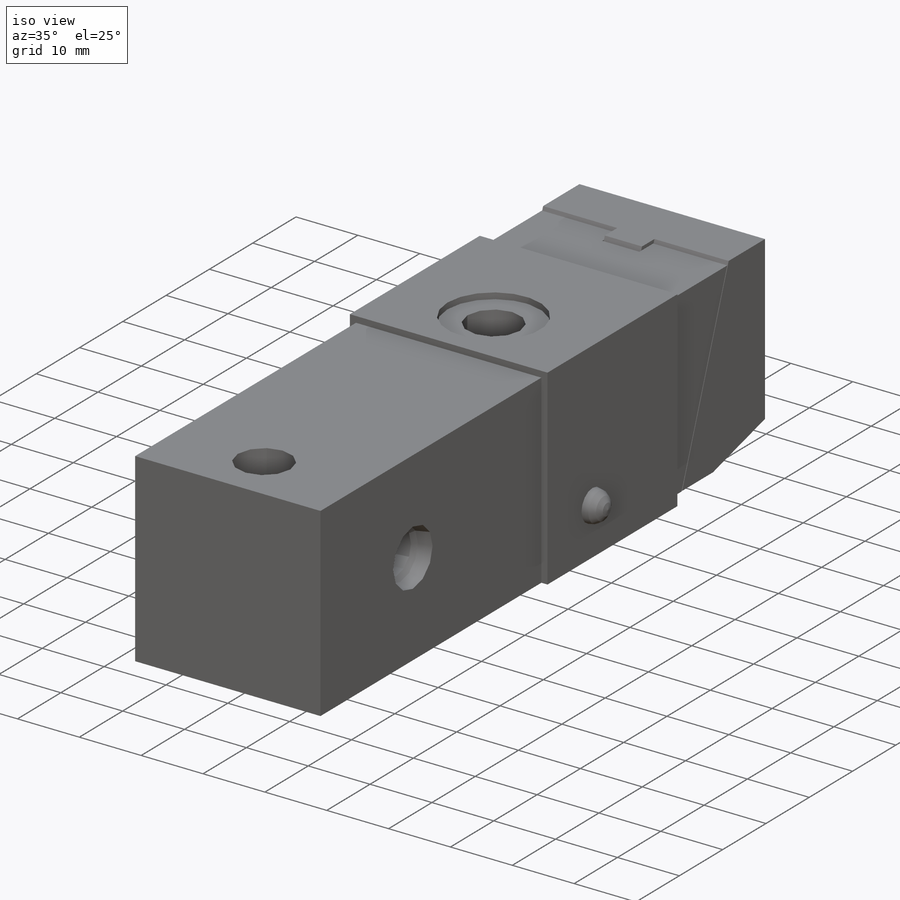
[diagram: iso view]
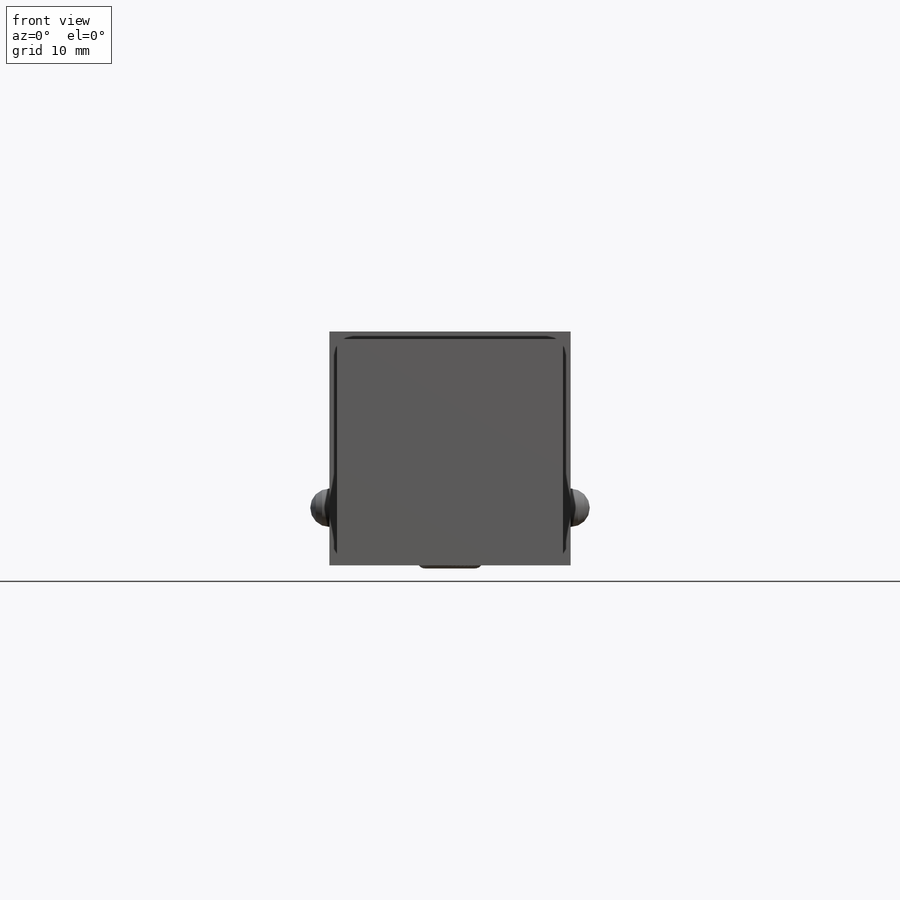
[diagram: front view]
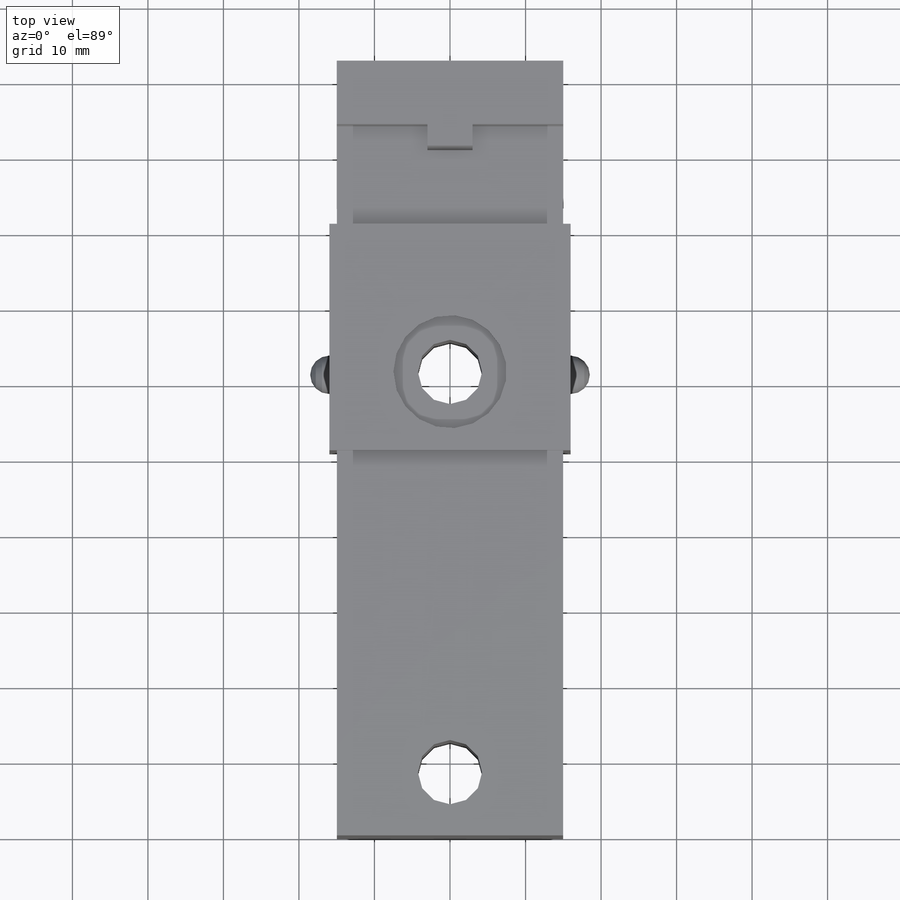
[diagram: top view]
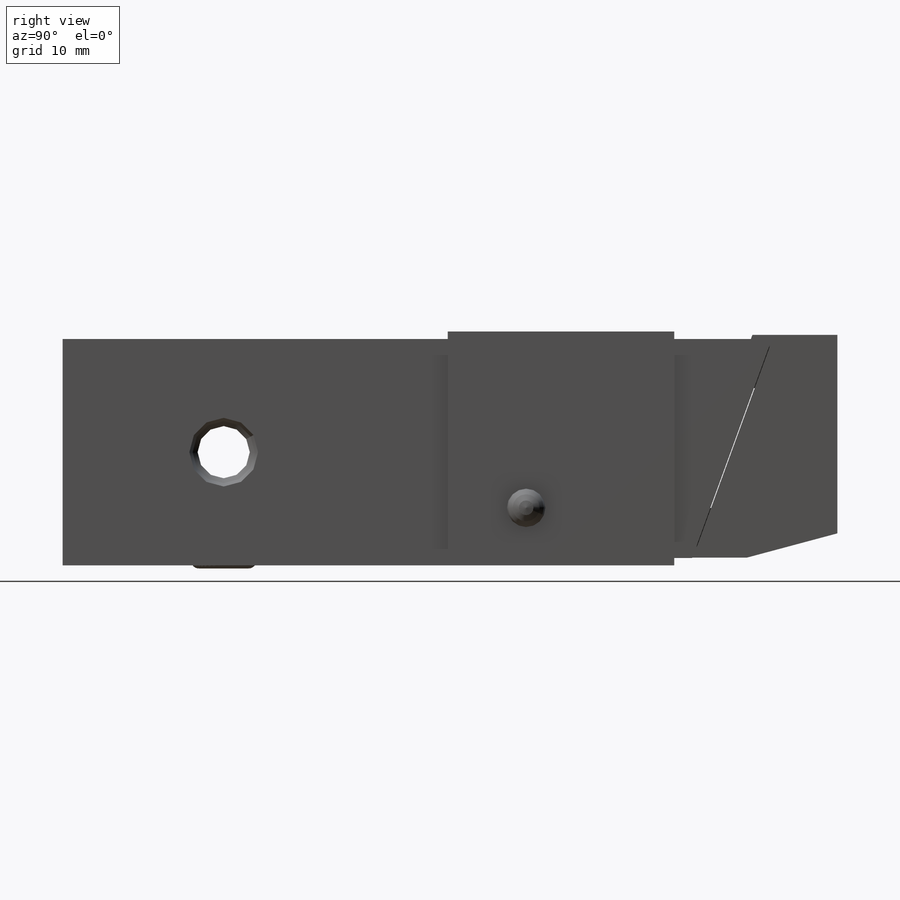
[diagram: right view]
SOLIDWORKS PART (.sldprt)
format: sldprt  version: not decoded by parser v0  size: 399,872 bytes
history: native  units: mm
features: sketch x17, extrude x6, cut_extrude x4, cut_revolve x3, plane x3, revolve x2, material x1, hole x1, mirror x1 (+13 scaffold rows collapsed)
feature tree (51):
  scaffold x13  (default folders/planes/origin — collapsed)
  material  "Alloy Steel"
  sketch  "Sketch1"  dims[D1=29.972mm D2=73.9902mm]
  extrude  "Extrude1"  Depth=29.972mm
  sketch  "Sketch11"  dims[c1.D1=~7.88735mm c2.D1=15.0deg c2.D2=~3.215386mm c2.D3=~8.38962mm c2.D4=~30.782103mm c3.D4=20.0deg c3.D5=102.616mm c3.D6=1.016mm c3.D7=~29.500068mm]
  extrude  "Extrude4"  Depth=29.99994mm
  sketch  "Sketch12"  dims[D1=~2.70002mm]
  extrude  "Extrude5"  Depth=5.999988mm
  sketch  "Sketch13"  dims[D1=~14.500098mm D2=~16.999966mm D3=19.05mm D4=~7.999984mm D5=~4.800092mm D6=~6.800088mm D7=~4.299966mm]
  cut_revolve  "Cut-Revolve4"  Angle=360deg
  sketch  "Sketch14"  dims[D1=7.0104mm]
  extrude  "Extrude6"  Depth=3.247898mm
  sketch  "Sketch15"  dims[D1=3.9878mm]
  cut_extrude  "Cut-Extrude3"  [1 undecoded]
  sketch  "Sketch2"  dims[D1=29.0068mm D2=16.0274mm D3=~0.093176mm]
  extrude  "Extrude2"  Depth=29.972mm
  sketch  "Sketch3"  dims[D1=3.175mm]
  cut_extrude  "Cut-Extrude1"  Depth=5.9944mm
  sketch  "Sketch4"  dims[D1=8.509mm D2=53.0098mm D3=8.382mm D4=8.382mm]
  cut_extrude  "Cut-Extrude2"  Depth=0mm
  hole  "Hole1"  Diameter=5.0038mm Depth=6.096mm
  sketch  "Sketch17"  dims[D1=11.049mm D2=8.382mm D3=59.0042mm]
  sketch  "Sketch16"  dims[c1.D1=~97.659253deg c1.D2=~82.982399deg c1.Diameter=5.0038mm c2.D2=100.0mm c2.D3=~82.982399deg c2.D4=90.0deg c3.D3=~97.716715deg c3.Depth=6.096mm c3.Drill Angle=118.0deg]
  plane  "Plane14"  Offset=14.986mm
  sketch  "S2D0001"  dims[c1.D2=8.509mm c1.D1=15.24mm c2.D2=12.954mm c2.D3=6.9088mm c2.D4=9.0932mm c2.D5=2.0701mm c2.D6=2.0701mm c3.D6=12.0deg c3.D7=~0.922331mm c4.D7=45.0deg]
  cut_revolve  "Cut-Revolve2"  Angle=360deg
  mirror  "Mirror1"
  sketch  "Sketch19"  dims[D1=1.5875mm D2=5.0038mm D3=8.636mm]
  cut_revolve  "Cut-Revolve5"  Angle=360deg
  sketch  "Sketch8"  dims[D1=2.0066mm D2=6.6294mm D3=0.5842mm]
  revolve  "Revolve1"  Angle=360deg
  plane  "Plane15"  Offset=7.0104mm
  sketch  "Sketch9"  dims[c1.D1=0.9906mm c1.D2=0.9906mm c2.D1=0.9906mm]
  extrude  "Extrude3"  Depth=29.9974mm
  plane  "Plane16"  Offset=7.62mm
  sketch  "Sketch10"  dims[D2=2.54mm D1=53.0098mm]
  revolve  "Revolve2"  Angle=360deg
  sketch  "Sketch18"  dims[D1=14.986mm]
  cut_extrude  "Cut-Extrude4"  [1 undecoded]
decode coverage: 31 of 34 modeling features carry decoded parameters
note: ~ marks probable driven/reference dimensions
note: 2 parameter values undecoded
note: suppression state not decoded; provenance and decode notes live in map.json
